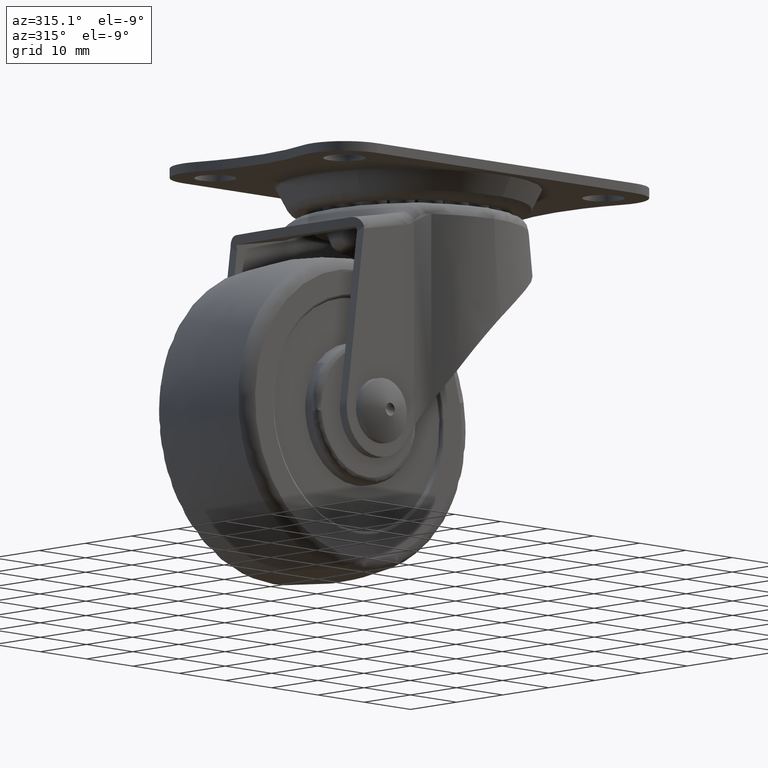
[diagram: clean part render]
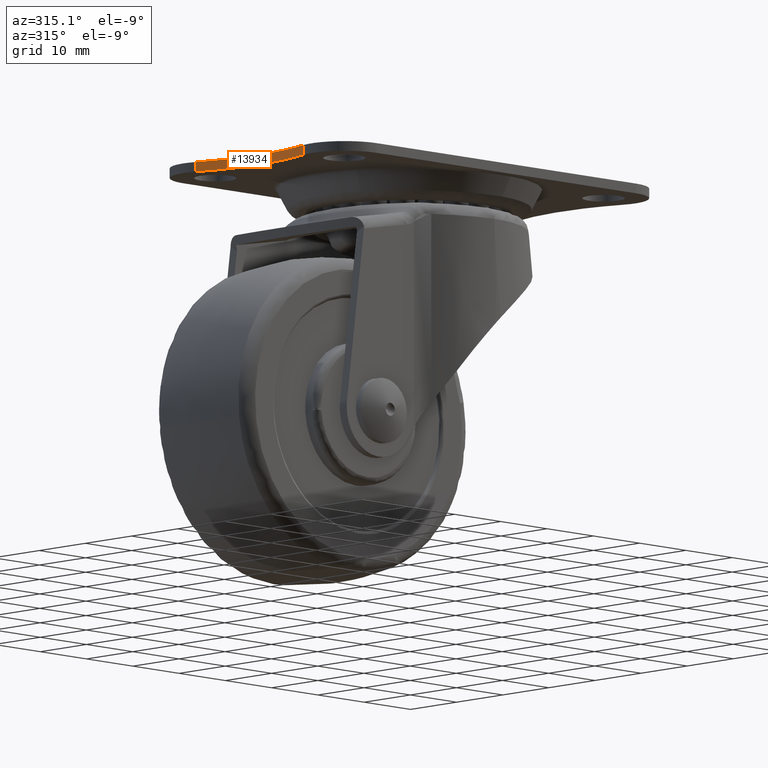
[diagram: same view with one face highlighted and labeled with its STEP entity id]
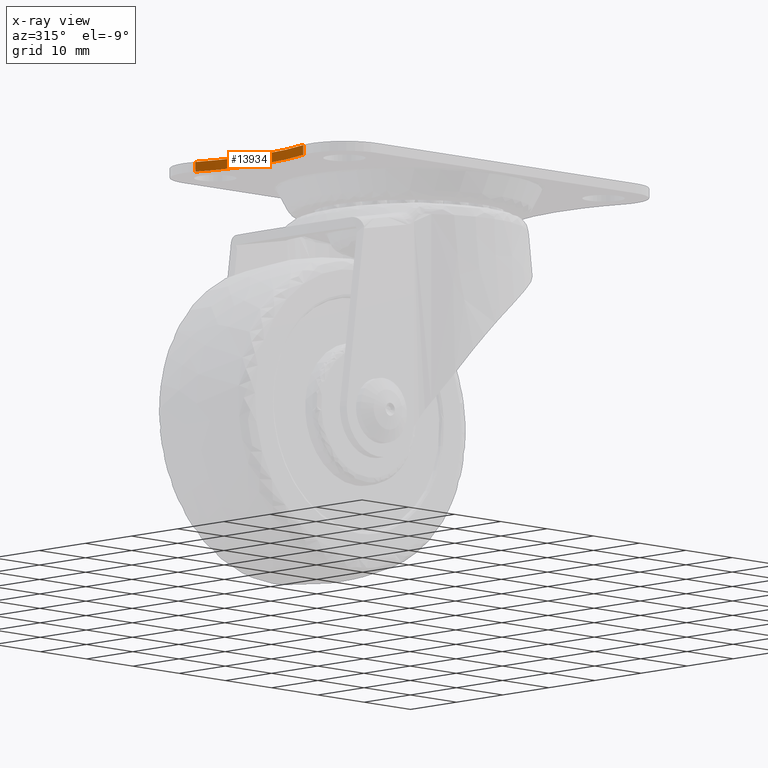
[diagram: x-ray of the same camera — body ghosted, the highlighted face saturated]
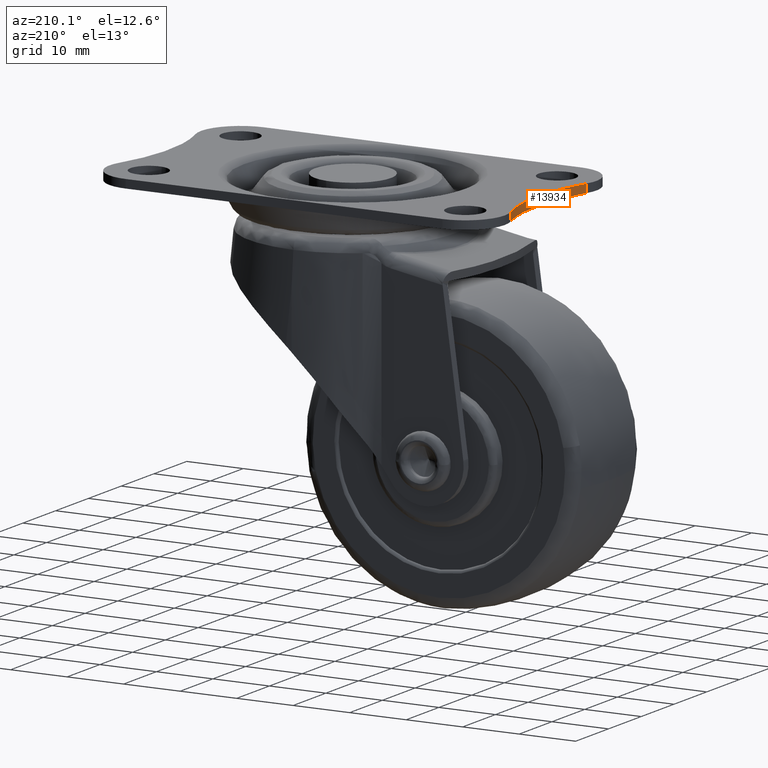
[diagram: same view with one face highlighted and labeled with its STEP entity id]
A machine part, auxiliary view. The second image highlights one B-rep face of the part: STEP entity #13934.
The next image is the same camera in x-ray: the body ghosted, the highlighted face saturated — about 0% of this face is hidden behind the body in this view.
A second angle (auxiliary view) of the same face is appended — the face is thin or edge-on in the first view.
In plain terms, the highlighted face is a freeform B-spline surface patch.
Its self-contained STEP definition (entity closure, byte-faithful):
#13831=CARTESIAN_POINT('',(-34.609300374364153,-11.694120049033801,0.0));
#13832=VERTEX_POINT('',#13831);
#13857=CARTESIAN_POINT('',(-34.609300374364153,-11.694120049033801,1.499999999999946));
#13858=VERTEX_POINT('',#13857);
#13874=CARTESIAN_POINT('',(-34.609300374364153,-11.694120049033801,1.499999999999946));
#13875=CARTESIAN_POINT('',(-34.609300374364153,-11.694120049033801,0.0));
#13876=QUASI_UNIFORM_CURVE('',1,(#13874,#13875),.UNSPECIFIED.,.F.,.U.);
#13877=EDGE_CURVE('',#13858,#13832,#13876,.T.);
#13882=CARTESIAN_POINT('',(-34.926902532721627,-12.567527785131460,1.537499999999945));
#13883=CARTESIAN_POINT('',(-34.926902532721627,-12.567527785131460,-0.038437499999999));
#13884=CARTESIAN_POINT('',(-30.120258359928432,0.130717455654767,1.537499999999944));
#13885=CARTESIAN_POINT('',(-30.120258359928432,0.130717455654767,-0.038437499999999));
#13886=CARTESIAN_POINT('',(-35.014137752800046,12.795598224419365,1.537499999999946));
#13887=CARTESIAN_POINT('',(-35.014137752800046,12.795598224419365,-0.038437499999999));
#13895=(BOUNDED_SURFACE()B_SPLINE_SURFACE(1,2,((#13882,#13884,#13886),(#13883,#13885,#13887)),.UNSPECIFIED.,.F.,.F.,.U.)B_SPLINE_SURFACE_WITH_KNOTS((2,2),(3,3),(0.0,1.0),(0.0,26.228577632386092),.UNSPECIFIED.)GEOMETRIC_REPRESENTATION_ITEM()RATIONAL_B_SPLINE_SURFACE(((1.0,0.932302385934531,0.996332474314796),(1.0,0.932302385934531,0.996332474314796)))REPRESENTATION_ITEM('')SURFACE());
#13896=CARTESIAN_POINT('',(-34.611171447338400,11.699465691522059,0.0));
#13897=VERTEX_POINT('',#13896);
#13898=CARTESIAN_POINT('',(-34.609300374364118,-11.694120049033810,0.0));
#13899=CARTESIAN_POINT('',(-30.528361173397975,0.002999299005608,0.0));
#13900=CARTESIAN_POINT('',(-34.611171447338400,11.699465691522059,0.0));
#13908=(BOUNDED_CURVE()B_SPLINE_CURVE(2,(#13898,#13899,#13900),.UNSPECIFIED.,.F.,.U.)CURVE()GEOMETRIC_REPRESENTATION_ITEM()QUASI_UNIFORM_CURVE()RATIONAL_B_SPLINE_CURVE((1.0,0.944160055577411,1.0))REPRESENTATION_ITEM(''));
#13909=EDGE_CURVE('',#13832,#13897,#13908,.T.);
#13910=ORIENTED_EDGE('',*,*,#13909,.F.);
#13911=ORIENTED_EDGE('',*,*,#13877,.F.);
#13912=CARTESIAN_POINT('',(-34.611171447338400,11.699465691522059,1.499999999999946));
#13913=VERTEX_POINT('',#13912);
#13914=CARTESIAN_POINT('',(-34.609300374364118,-11.694120049033810,1.499999999999946));
#13915=CARTESIAN_POINT('',(-30.528361173397975,0.002999299005608,1.499999999999946));
#13916=CARTESIAN_POINT('',(-34.611171447338400,11.699465691522059,1.499999999999946));
#13924=(BOUNDED_CURVE()B_SPLINE_CURVE(2,(#13914,#13915,#13916),.UNSPECIFIED.,.F.,.U.)CURVE()GEOMETRIC_REPRESENTATION_ITEM()QUASI_UNIFORM_CURVE()RATIONAL_B_SPLINE_CURVE((1.0,0.944160055577411,1.0))REPRESENTATION_ITEM(''));
#13925=EDGE_CURVE('',#13858,#13913,#13924,.T.);
#13926=ORIENTED_EDGE('',*,*,#13925,.T.);
#13927=CARTESIAN_POINT('',(-34.611171447338400,11.699465691522059,1.499999999999946));
#13928=CARTESIAN_POINT('',(-34.611171447338400,11.699465691522059,0.0));
#13929=QUASI_UNIFORM_CURVE('',1,(#13927,#13928),.UNSPECIFIED.,.F.,.U.);
#13930=EDGE_CURVE('',#13913,#13897,#13929,.T.);
#13931=ORIENTED_EDGE('',*,*,#13930,.T.);
#13932=EDGE_LOOP('',(#13910,#13911,#13926,#13931));
#13933=FACE_OUTER_BOUND('',#13932,.T.);
#13934=ADVANCED_FACE('',(#13933),#13895,.F.);